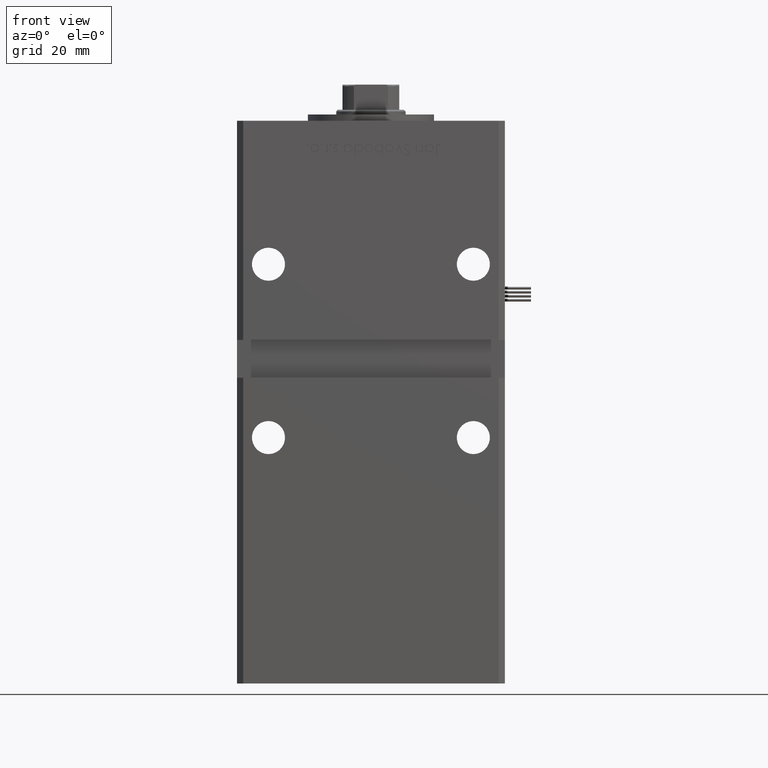
[diagram: clean part render]
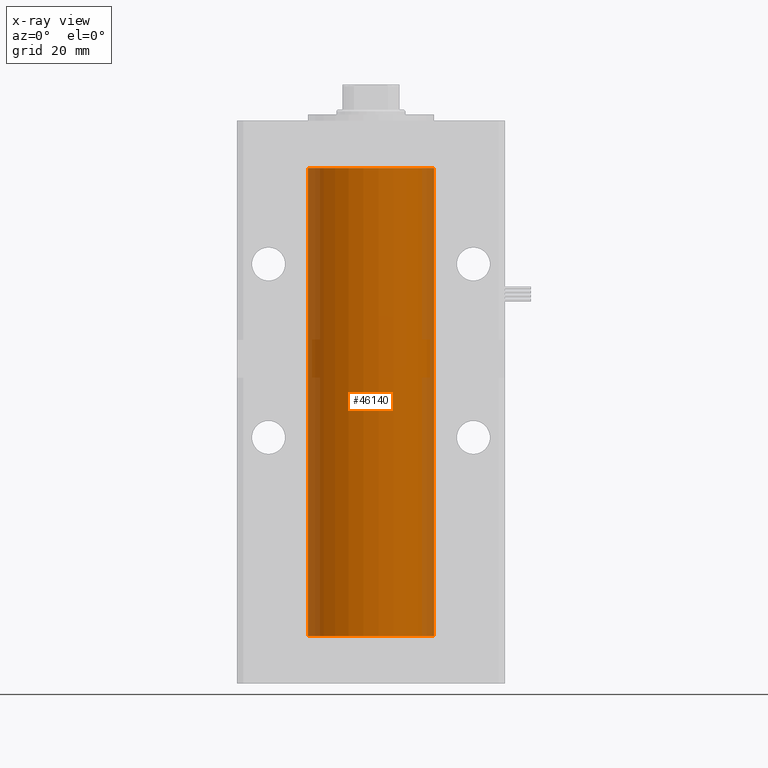
[diagram: x-ray — body ghosted, one internal face saturated and labeled with its STEP entity id]
A machine part, front view, then the same camera in x-ray: the body is ghosted and one INTERNAL B-rep face — a face not visible from any outside direction — is saturated and labeled: STEP entity #46140.
In plain terms, the highlighted cylindrical surface (partial cylindrical patch) has radius 20 mm, axis along (-0, -0, -1).
Its self-contained STEP definition (entity closure, byte-faithful):
#1134 = CARTESIAN_POINT ( 'NONE',  ( 20.00000000000000000, 2.449293598294706513E-15, 148.5000000000000000 ) ) ;
#1160 = VERTEX_POINT ( 'NONE', #24691 ) ;
#1206 = DIRECTION ( 'NONE',  ( -0.000000000000000000, 0.000000000000000000, 1.000000000000000000 ) ) ;
#3232 = CARTESIAN_POINT ( 'NONE',  ( -20.00000000000000000, 0.000000000000000000, 148.5000000000000000 ) ) ;
#4326 = CARTESIAN_POINT ( 'NONE',  ( 0.000000000000000000, 0.000000000000000000, 148.5000000000000000 ) ) ;
#4467 = VECTOR ( 'NONE', #7504, 1000.000000000000000 ) ;
#5003 = AXIS2_PLACEMENT_3D ( 'NONE', #4326, #1206, #17982 ) ;
#6252 = DIRECTION ( 'NONE',  ( -0.000000000000000000, -0.000000000000000000, -1.000000000000000000 ) ) ;
#6835 = CYLINDRICAL_SURFACE ( 'NONE', #20791, 20.00000000000000000 ) ;
#7504 = DIRECTION ( 'NONE',  ( -0.000000000000000000, -0.000000000000000000, -1.000000000000000000 ) ) ;
#9249 = EDGE_LOOP ( 'NONE', ( #28757, #54828, #23389, #44930 ) ) ;
#12876 = VERTEX_POINT ( 'NONE', #50123 ) ;
#15367 = CARTESIAN_POINT ( 'NONE',  ( 0.000000000000000000, 0.000000000000000000, 148.5000000000000000 ) ) ;
#15648 = DIRECTION ( 'NONE',  ( -1.000000000000000000, 0.000000000000000000, 0.000000000000000000 ) ) ;
#17982 = DIRECTION ( 'NONE',  ( 1.000000000000000000, 0.000000000000000000, 0.000000000000000000 ) ) ;
#19449 = EDGE_CURVE ( 'NONE', #12876, #1160, #43404, .T. ) ;
#20791 = AXIS2_PLACEMENT_3D ( 'NONE', #15367, #49679, #15648 ) ;
#23389 = ORIENTED_EDGE ( 'NONE', *, *, #19449, .F. ) ;
#24691 = CARTESIAN_POINT ( 'NONE',  ( 20.00000000000000000, 2.449293598294706513E-15, 0.000000000000000000 ) ) ;
#27277 = FACE_OUTER_BOUND ( 'NONE', #9249, .T. ) ;
#28005 = CARTESIAN_POINT ( 'NONE',  ( -20.00000000000000000, 0.000000000000000000, 148.5000000000000000 ) ) ;
#28757 = ORIENTED_EDGE ( 'NONE', *, *, #38328, .T. ) ;
#31324 = CARTESIAN_POINT ( 'NONE',  ( 0.000000000000000000, 0.000000000000000000, 0.000000000000000000 ) ) ;
#33896 = VERTEX_POINT ( 'NONE', #1134 ) ;
#35535 = EDGE_CURVE ( 'NONE', #33896, #1160, #45109, .T. ) ;
#36136 = DIRECTION ( 'NONE',  ( -0.000000000000000000, 0.000000000000000000, 1.000000000000000000 ) ) ;
#36596 = VECTOR ( 'NONE', #6252, 1000.000000000000000 ) ;
#36744 = LINE ( 'NONE', #3232, #4467 ) ;
#38328 = EDGE_CURVE ( 'NONE', #47971, #33896, #43021, .T. ) ;
#40678 = DIRECTION ( 'NONE',  ( 1.000000000000000000, 0.000000000000000000, 0.000000000000000000 ) ) ;
#43021 = CIRCLE ( 'NONE', #5003, 20.00000000000000000 ) ;
#43404 = CIRCLE ( 'NONE', #49796, 20.00000000000000000 ) ;
#44930 = ORIENTED_EDGE ( 'NONE', *, *, #50575, .F. ) ;
#45109 = LINE ( 'NONE', #45954, #36596 ) ;
#45954 = CARTESIAN_POINT ( 'NONE',  ( 20.00000000000000000, 2.449293598294706513E-15, 148.5000000000000000 ) ) ;
#46140 = ADVANCED_FACE ( 'NONE', ( #27277 ), #6835, .F. ) ;
#47971 = VERTEX_POINT ( 'NONE', #28005 ) ;
#49679 = DIRECTION ( 'NONE',  ( -0.000000000000000000, -0.000000000000000000, -1.000000000000000000 ) ) ;
#49796 = AXIS2_PLACEMENT_3D ( 'NONE', #31324, #36136, #40678 ) ;
#50123 = CARTESIAN_POINT ( 'NONE',  ( -20.00000000000000000, 0.000000000000000000, 0.000000000000000000 ) ) ;
#50575 = EDGE_CURVE ( 'NONE', #47971, #12876, #36744, .T. ) ;
#54828 = ORIENTED_EDGE ( 'NONE', *, *, #35535, .T. ) ;